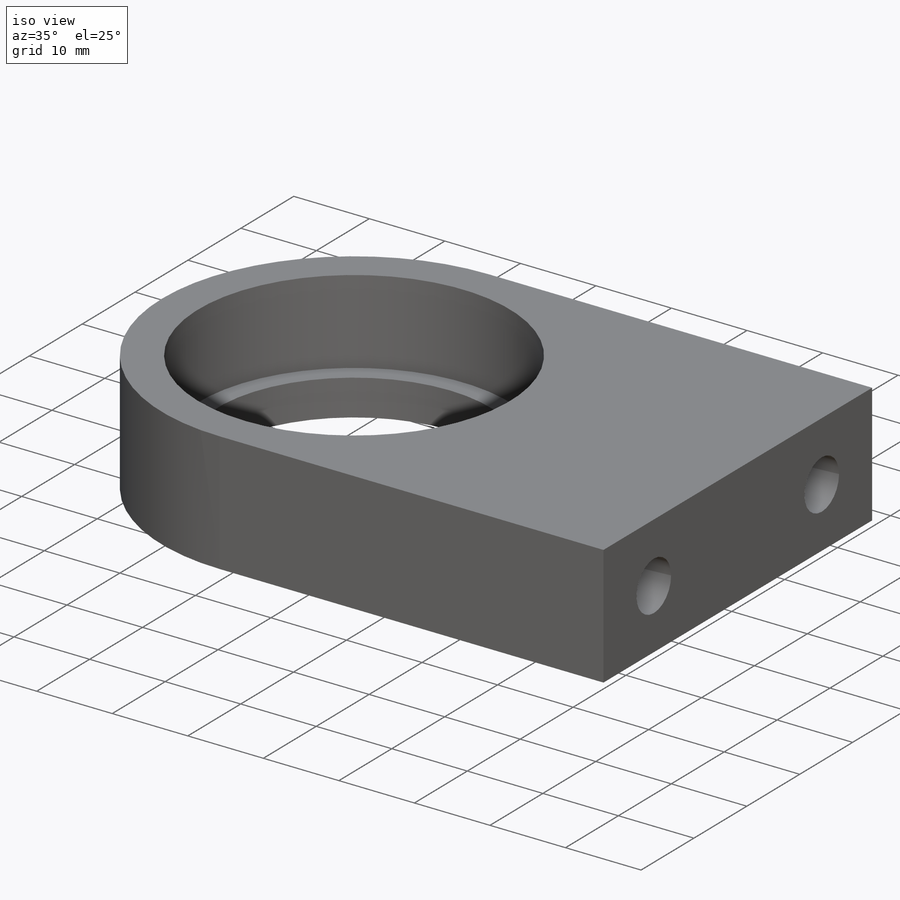
[diagram: iso view]
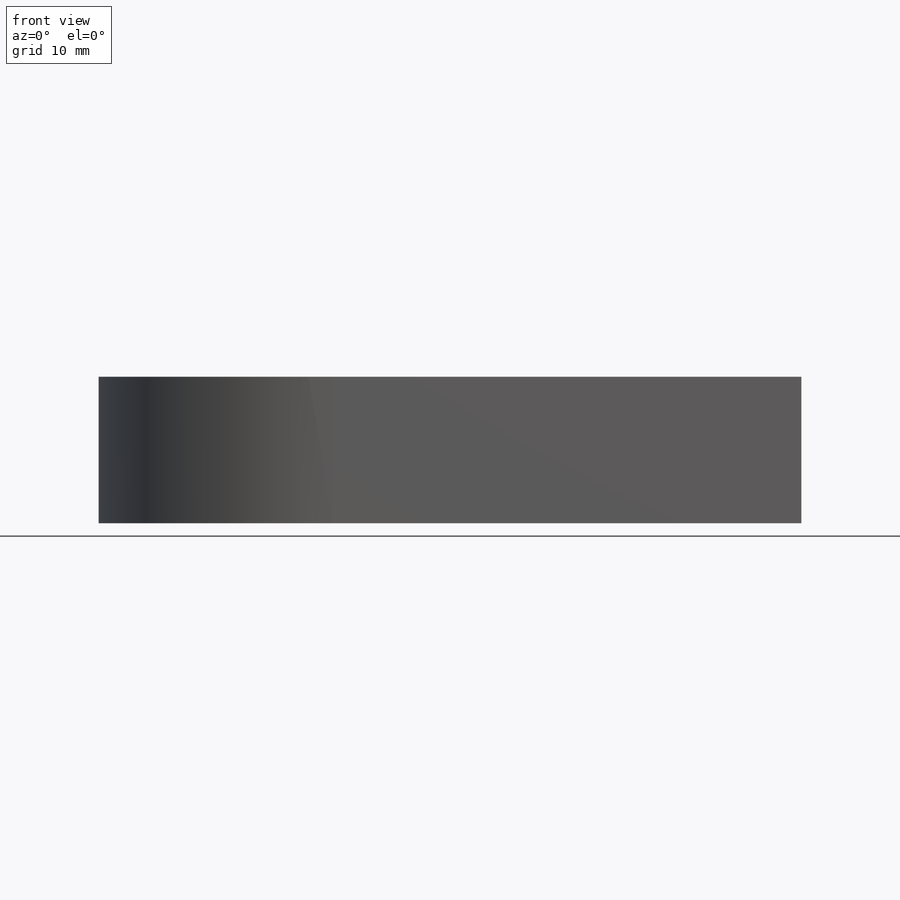
[diagram: front view]
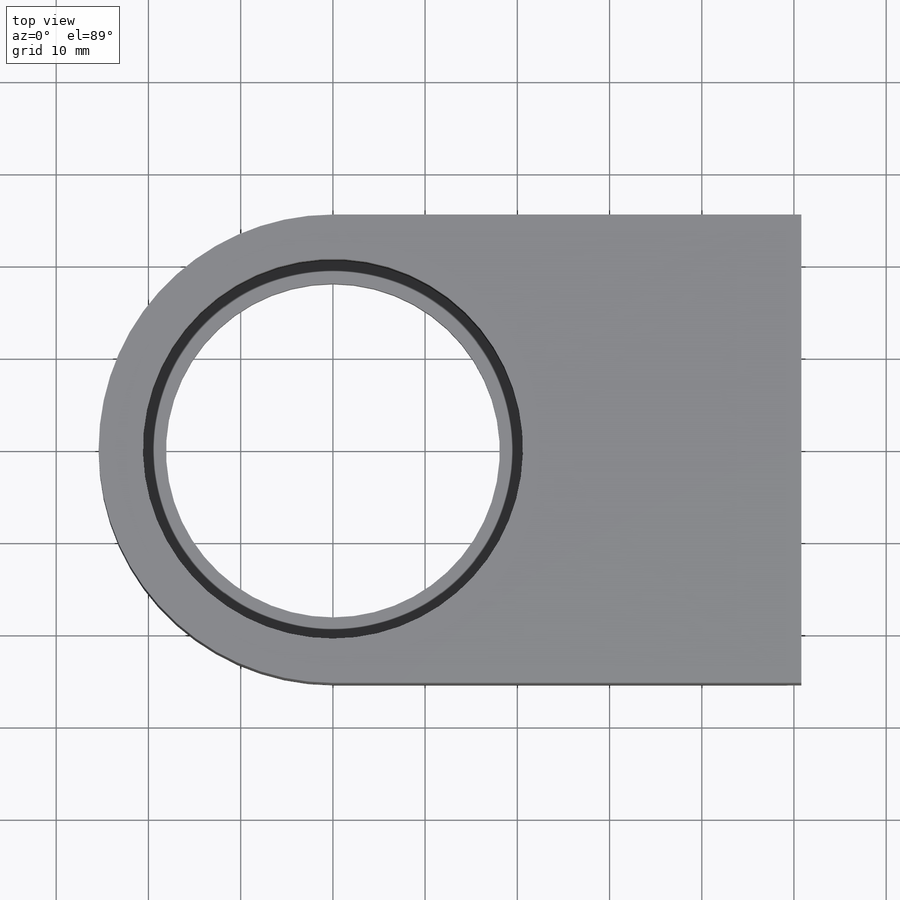
[diagram: top view]
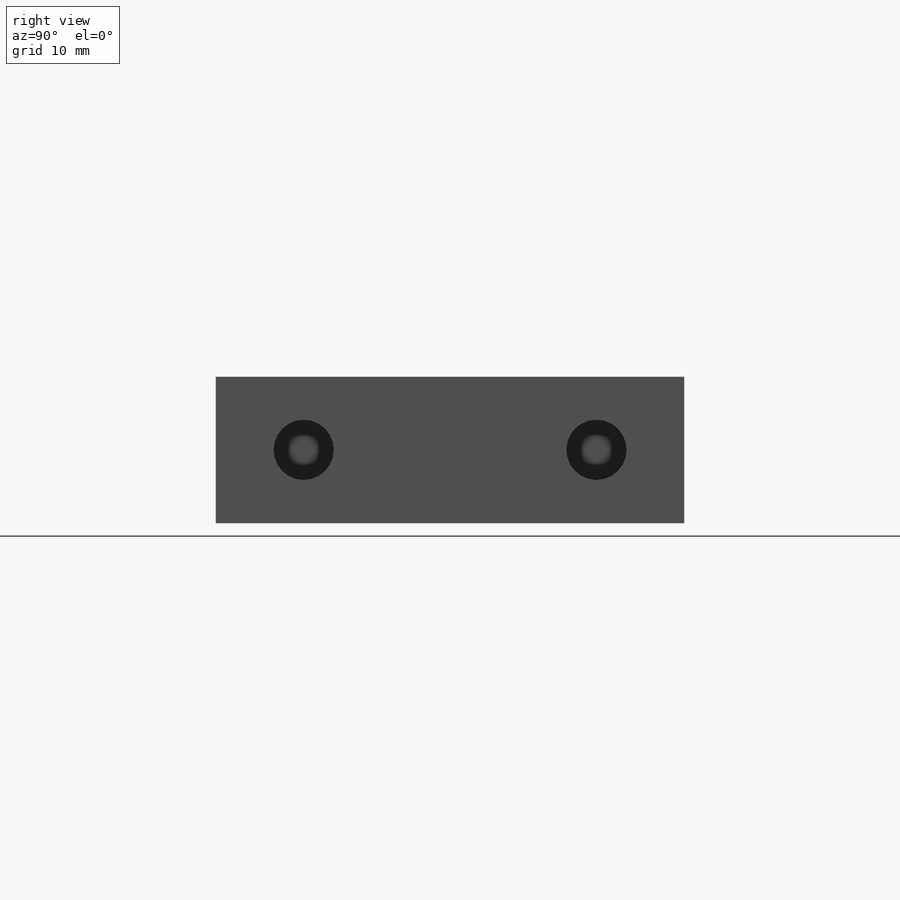
[diagram: right view]
SOLIDWORKS PART (.sldprt)
format: sldprt  version: not decoded by parser v0  size: 399,360 bytes
history: native  units: mm
features: sketch x5, cut_extrude x4, material x1, extrude x1 (+11 scaffold rows collapsed)
feature tree (22):
  scaffold x11  (default folders/planes/origin — collapsed)
  material  "6061-T6 (SS)"
  sketch  "Sketch1"  dims[D1=25.4mm D2=50.8mm D3=76.2mm D4=25.4mm]
  extrude  "Boss-Extrude1"  Depth=15.875mm
  sketch  "Sketch2"  dims[D1=41.1988mm]
  cut_extrude  "Cut-Extrude1"  Depth=11.1125mm
  sketch  "Sketch3"  dims[D1=2.54mm D2=76.2mm]
  cut_extrude  "Cut-Extrude2"  Depth=12.7mm
  sketch  "Sketch7"  dims[c1.D3=6.5278mm c1.D1=9.525mm c1.D2=9.525mm c2.D1=9.525mm]
  cut_extrude  "Cut-Extrude6"  Depth=19.05mm
  sketch  "Sketch8"  dims[D1=12.7mm D2=12.7mm D3=50.8mm]
  cut_extrude  "Cut-Extrude7"  [1 undecoded]
decode coverage: 9 of 10 modeling features carry decoded parameters
note: 1 parameter value undecoded
note: suppression state not decoded; provenance and decode notes live in map.json
